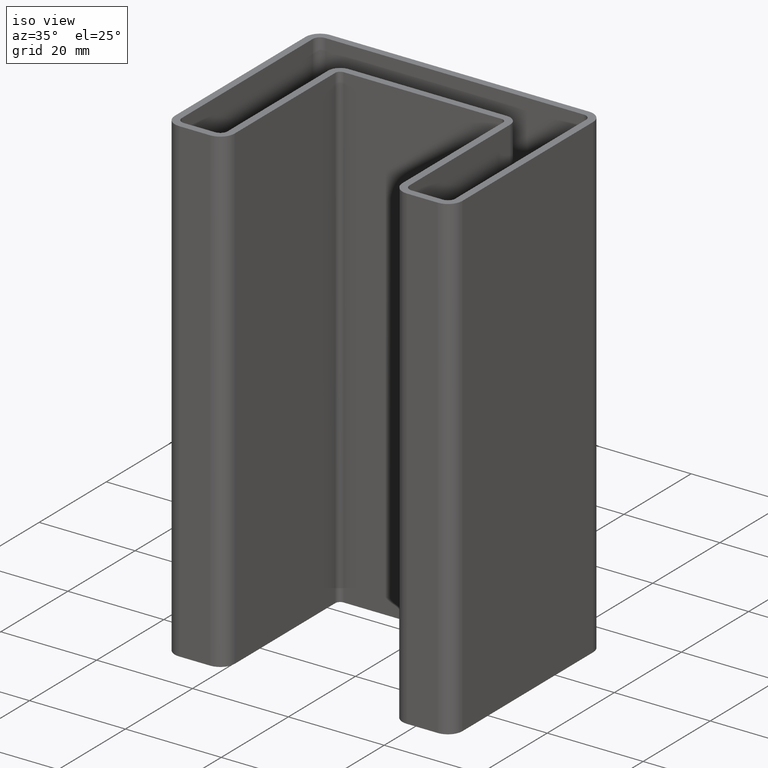
[diagram: clean part render]
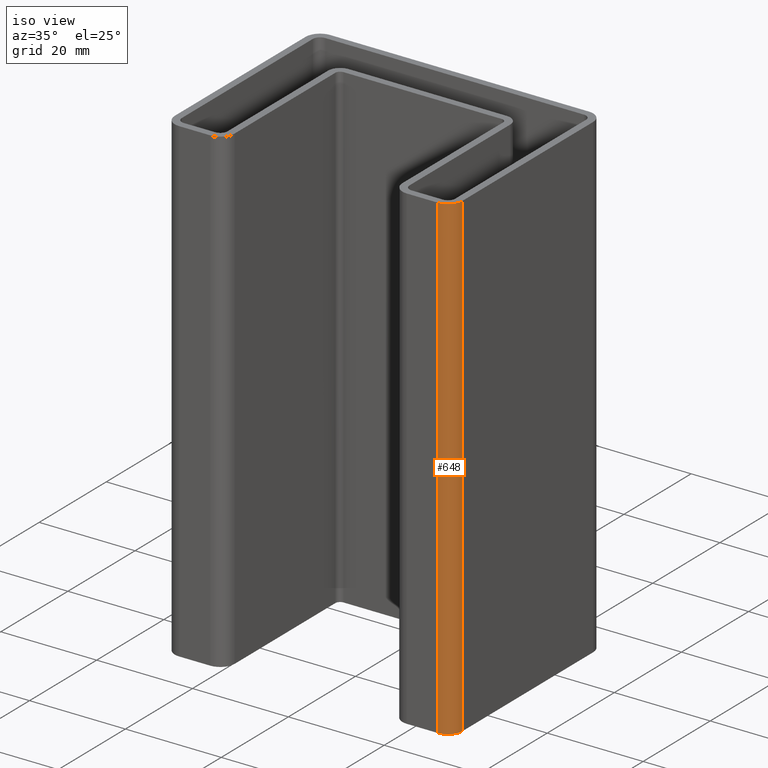
[diagram: same view with one face highlighted and labeled with its STEP entity id]
A machine part, iso view. The second image highlights one B-rep face of the part: STEP entity #648.
In plain terms, the highlighted cylindrical surface (edge-blend (fillet) strip) has radius 3 mm, axis along (0, 0, -1).
Its self-contained STEP definition (entity closure, byte-faithful):
#22=CYLINDRICAL_SURFACE('',#727,3.);
#51=CIRCLE('',#702,3.);
#62=CIRCLE('',#721,3.);
#164=ORIENTED_EDGE('',*,*,#328,.T.);
#165=ORIENTED_EDGE('',*,*,#262,.T.);
#166=ORIENTED_EDGE('',*,*,#294,.T.);
#167=ORIENTED_EDGE('',*,*,#337,.T.);
#262=EDGE_CURVE('',#359,#358,#422,.T.);
#294=EDGE_CURVE('',#358,#389,#51,.F.);
#328=EDGE_CURVE('',#415,#359,#62,.T.);
#337=EDGE_CURVE('',#389,#415,#465,.F.);
#358=VERTEX_POINT('',#955);
#359=VERTEX_POINT('',#957);
#389=VERTEX_POINT('',#1019);
#415=VERTEX_POINT('',#1088);
#422=LINE('',#956,#486);
#465=LINE('',#1102,#529);
#486=VECTOR('',#757,1000.);
#529=VECTOR('',#884,1000.);
#560=EDGE_LOOP('',(#164,#165,#166,#167));
#596=FACE_BOUND('',#560,.T.);
#648=ADVANCED_FACE('',(#596),#22,.T.);
#702=AXIS2_PLACEMENT_3D('',#1020,#806,#807);
#721=AXIS2_PLACEMENT_3D('',#1087,#867,#868);
#727=AXIS2_PLACEMENT_3D('',#1101,#882,#883);
#757=DIRECTION('',(0.,0.,1.));
#806=DIRECTION('',(0.,0.,1.));
#807=DIRECTION('',(1.,0.,0.));
#867=DIRECTION('',(0.,0.,1.));
#868=DIRECTION('',(1.,0.,0.));
#882=DIRECTION('',(0.,0.,-1.));
#883=DIRECTION('',(-1.,0.,0.));
#884=DIRECTION('',(0.,0.,1.));
#955=CARTESIAN_POINT('',(30.00000000001,-31.,50.6476146399861));
#956=CARTESIAN_POINT('',(30.,-31.,50.6476146399861));
#957=CARTESIAN_POINT('',(30.00000000001,-31.,-49.3523853600239));
#1019=CARTESIAN_POINT('',(27.,-34.,50.6476146399861));
#1020=CARTESIAN_POINT('',(27.,-31.,50.6476146399861));
#1087=CARTESIAN_POINT('',(27.,-31.,-49.3523853600139));
#1088=CARTESIAN_POINT('',(27.,-34.,-49.3523853600139));
#1101=CARTESIAN_POINT('',(27.,-31.,50.6476146399861));
#1102=CARTESIAN_POINT('',(27.,-34.,50.6476146399861));